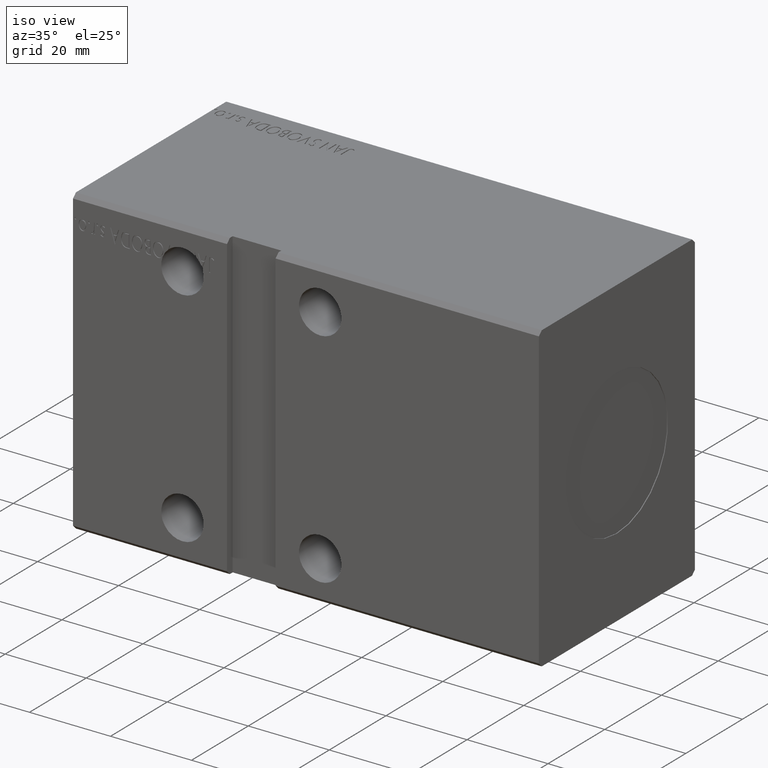
[diagram: clean part render]
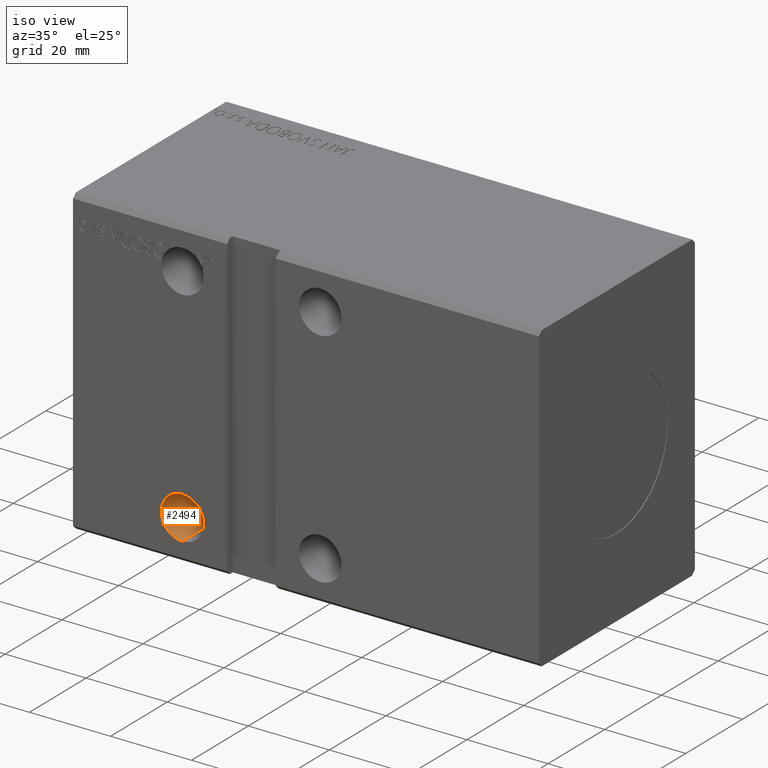
[diagram: same view with one face highlighted and labeled with its STEP entity id]
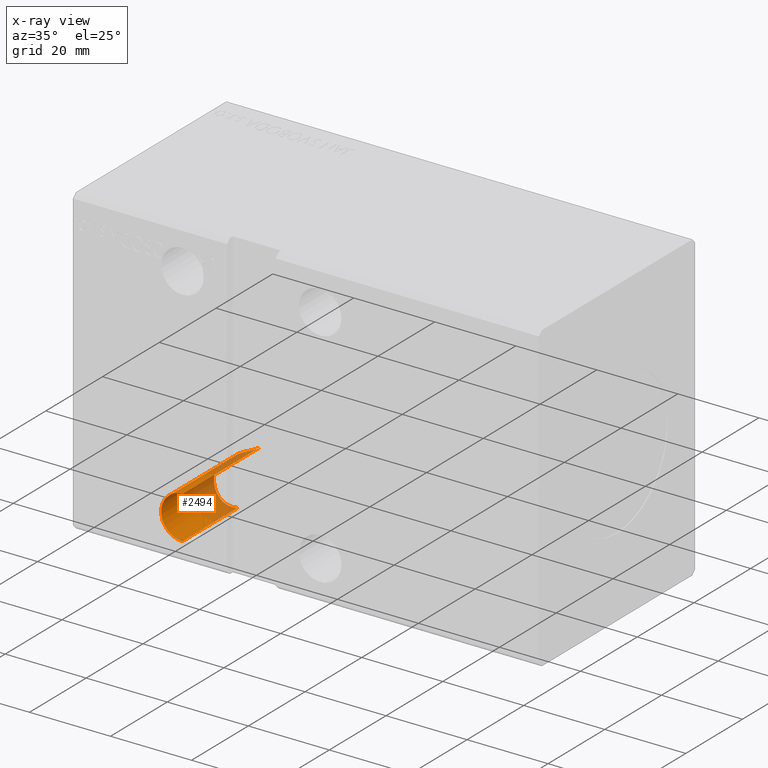
[diagram: x-ray of the same camera — body ghosted, the highlighted face saturated]
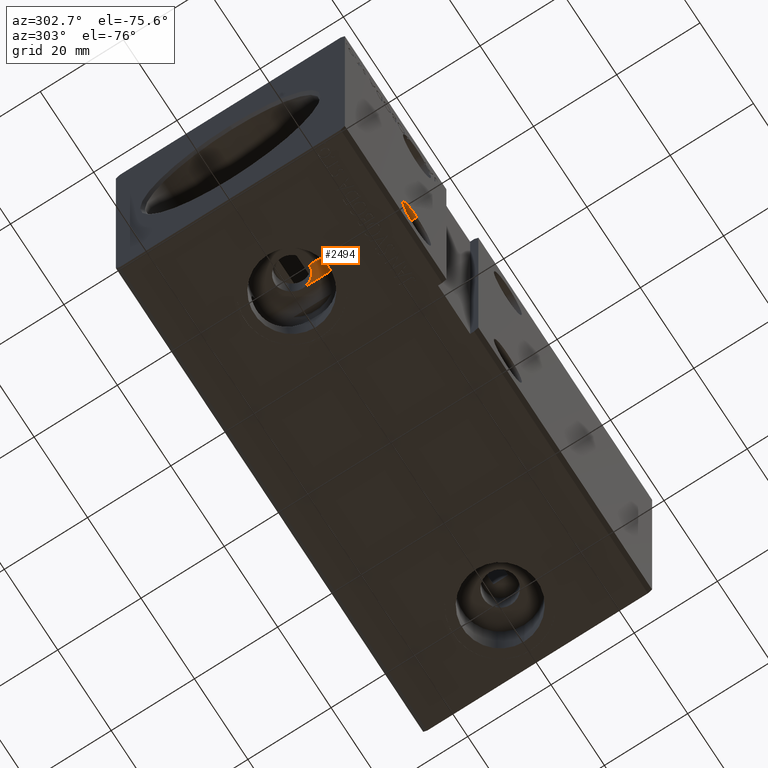
[diagram: same view with one face highlighted and labeled with its STEP entity id]
A machine part, iso view. The second image highlights one B-rep face of the part: STEP entity #2494.
The next image is the same camera in x-ray: the body ghosted, the highlighted face saturated — about 40% of this face is hidden behind the body in this view.
A second angle (auxiliary view) of the same face is appended — the face is thin or edge-on in the first view.
In plain terms, the highlighted cylindrical surface (edge-blend (fillet) strip) has radius 5.25 mm, axis along (-0, -1, -0).
Its self-contained STEP definition (entity closure, byte-faithful):
#781 = VERTEX_POINT ( 'NONE', #21496 ) ;
#1237 = CARTESIAN_POINT ( 'NONE',  ( 23.74874548984193723, -8.970939710471037998, -31.63025947165326457 ) ) ;
#1423 = CARTESIAN_POINT ( 'NONE',  ( 23.35767470268336510, -8.995023507724990708, -31.28987672906810502 ) ) ;
#1445 = EDGE_CURVE ( 'NONE', #16377, #28499, #24603, .T. ) ;
#1681 = VECTOR ( 'NONE', #32310, 1000.000000000000000 ) ;
#2026 = CARTESIAN_POINT ( 'NONE',  ( 25.80550959968107705, -8.555239810550213875, -32.61842383839086779 ) ) ;
#2209 = CARTESIAN_POINT ( 'NONE',  ( 21.88880316543686533, -8.931270881071915468, -26.27284882410880584 ) ) ;
#2494 = ADVANCED_FACE ( 'NONE', ( #11367 ), #35472, .F. ) ;
#2589 = LINE ( 'NONE', #38880, #1681 ) ;
#2803 = ORIENTED_EDGE ( 'NONE', *, *, #30347, .T. ) ;
#3028 = CARTESIAN_POINT ( 'NONE',  ( 26.58087709370445850, -1.802232880305481455, -22.26572885212446806 ) ) ;
#3425 = CARTESIAN_POINT ( 'NONE',  ( 23.27541948670728544, -3.990506748063698428, -23.79999999999998650 ) ) ;
#3627 = CARTESIAN_POINT ( 'NONE',  ( 24.97165712530440018, -3.489525752320416174, -22.65236875756328772 ) ) ;
#3718 = CARTESIAN_POINT ( 'NONE',  ( 27.00000000000000355, 27.50000000000003197, -32.75000000000000000 ) ) ;
#3967 = CARTESIAN_POINT ( 'NONE',  ( 23.27541948670728544, -3.990506748063698428, -23.79999999999998650 ) ) ;
#4209 = CARTESIAN_POINT ( 'NONE',  ( 21.74394696409208194, -8.911926248307375786, -27.55961525603168027 ) ) ;
#4298 = DIRECTION ( 'NONE',  ( -0.000000000000000000, -1.000000000000000000, -5.507058653894626469E-17 ) ) ;
#4963 = DIRECTION ( 'NONE',  ( 0.000000000000000000, 0.000000000000000000, -1.000000000000000000 ) ) ;
#6579 = EDGE_CURVE ( 'NONE', #29453, #24207, #24675, .T. ) ;
#6913 = CARTESIAN_POINT ( 'NONE',  ( 23.27541948670728544, 27.50000000000003197, -23.79999999999998650 ) ) ;
#6935 = CARTESIAN_POINT ( 'NONE',  ( 27.00000000000000355, -27.50000000000000355, -22.25000000000001066 ) ) ;
#7213 = CARTESIAN_POINT ( 'NONE',  ( 21.97308215978567603, -8.943657081571185330, -29.10219198176171673 ) ) ;
#8135 = ORIENTED_EDGE ( 'NONE', *, *, #19389, .F. ) ;
#8404 = CARTESIAN_POINT ( 'NONE',  ( 22.23082137755478982, -8.967885657624288243, -25.28985837464655972 ) ) ;
#8590 = CARTESIAN_POINT ( 'NONE',  ( 22.61114177981006179, -8.992926944251884436, -24.60709789233364120 ) ) ;
#9489 = CIRCLE ( 'NONE', #22882, 5.249999999999997335 ) ;
#10416 = CARTESIAN_POINT ( 'NONE',  ( 22.38878130200075844, -8.981646505318773066, -30.06390020045802913 ) ) ;
#10605 = CARTESIAN_POINT ( 'NONE',  ( 24.39408681521057431, -8.894117382323472043, -32.06500116610869355 ) ) ;
#11202 = CARTESIAN_POINT ( 'NONE',  ( 22.66395700614654984, -9.000118316002684082, -30.50581094479297661 ) ) ;
#11367 = FACE_OUTER_BOUND ( 'NONE', #26152, .T. ) ;
#11798 = CARTESIAN_POINT ( 'NONE',  ( 22.12780312306788844, -8.958049892849127005, -25.52727704576142997 ) ) ;
#12189 = CARTESIAN_POINT ( 'NONE',  ( 21.76362356574520263, -8.914677335557517068, -27.04173224659647801 ) ) ;
#12233 = CARTESIAN_POINT ( 'NONE',  ( 26.78794795121687855, -1.312316438189888412, -22.25325887920218548 ) ) ;
#12681 = CARTESIAN_POINT ( 'NONE',  ( 27.00000000000000711, -8.062257748298547355, -32.75000000000000000 ) ) ;
#12840 = CARTESIAN_POINT ( 'NONE',  ( 24.08767559763522925, -3.855322449080073266, -23.12399272857787480 ) ) ;
#13305 = ORIENTED_EDGE ( 'NONE', *, *, #6579, .F. ) ;
#13612 = CARTESIAN_POINT ( 'NONE',  ( 21.84032567695500759, -8.925165590556764172, -28.60184830406890555 ) ) ;
#14103 = CARTESIAN_POINT ( 'NONE',  ( 27.00000000000000711, -2.694655668400267668E-15, -22.25000000000001066 ) ) ;
#14210 = CARTESIAN_POINT ( 'NONE',  ( 27.00000000000000711, -8.062257748298547355, -32.75000000000000000 ) ) ;
#15224 = CARTESIAN_POINT ( 'NONE',  ( 24.30543104851973624, -3.788652718593733315, -22.98718635235770691 ) ) ;
#15804 = ORIENTED_EDGE ( 'NONE', *, *, #22058, .T. ) ;
#15823 = CARTESIAN_POINT ( 'NONE',  ( 23.66667275823045102, -3.949948964924149486, -23.43551939807488793 ) ) ;
#16377 = VERTEX_POINT ( 'NONE', #3967 ) ;
#16562 = CARTESIAN_POINT ( 'NONE',  ( 26.99999999999999645, -0.2672362124812732165, -22.25000000000001066 ) ) ;
#17214 = CARTESIAN_POINT ( 'NONE',  ( 26.53090808061664774, -8.282458400232838969, -32.73460297341043912 ) ) ;
#18211 = CARTESIAN_POINT ( 'NONE',  ( 23.46243547194310608, -3.977599152634948343, -23.61174159613957002 ) ) ;
#19389 = EDGE_CURVE ( 'NONE', #16377, #781, #22088, .T. ) ;
#19450 = CARTESIAN_POINT ( 'NONE',  ( 27.00000000000000355, -27.50000000000000355, -27.50000000000000711 ) ) ;
#20774 = CARTESIAN_POINT ( 'NONE',  ( 22.47192751610906569, -8.985307361087173206, -24.83047751132562198 ) ) ;
#20974 = CARTESIAN_POINT ( 'NONE',  ( 22.92052522925184022, -9.000979363429035374, -24.18505736455388799 ) ) ;
#21496 = CARTESIAN_POINT ( 'NONE',  ( 23.27541948670728544, -8.995784796577890319, -23.79999999999998650 ) ) ;
#21996 = CARTESIAN_POINT ( 'NONE',  ( 25.60354574374016323, -3.048055681134146155, -22.43543354733324691 ) ) ;
#22058 = EDGE_CURVE ( 'NONE', #28499, #36364, #2589, .T. ) ;
#22088 = LINE ( 'NONE', #6913, #30952 ) ;
#22882 = AXIS2_PLACEMENT_3D ( 'NONE', #19450, #28423, #31008 ) ;
#23131 = DIRECTION ( 'NONE',  ( -0.000000000000000000, -1.000000000000000000, -5.507058653894626469E-17 ) ) ;
#23572 = CARTESIAN_POINT ( 'NONE',  ( 23.09032825795614130, -9.001451643036478600, -23.98632086048321455 ) ) ;
#24207 = VERTEX_POINT ( 'NONE', #38859 ) ;
#24582 = CARTESIAN_POINT ( 'NONE',  ( 26.97348491638868140, -0.5313397500620519187, -22.24980193531282424 ) ) ;
#24603 = B_SPLINE_CURVE_WITH_KNOTS ( 'NONE', 3,
 ( #3425, #18211, #15823, #12840, #15224, #27578, #3627, #36338, #21996, #24997, #30360, #36942, #3028, #12233, #33945, #24582, #16562, #34143 ),
 .UNSPECIFIED., .F., .F.,
 ( 4, 2, 2, 2, 2, 2, 2, 2, 4 ),
 ( 0.009118840472137550862, 0.009912878108013296191, 0.01070691574388903979, 0.01150095337976478338, 0.01229499101564052871, 0.01308902865151627230, 0.01388306628739201590, 0.01467710392326776123, 0.01547114155914350656 ),
 .UNSPECIFIED. ) ;
#24675 = LINE ( 'NONE', #3718, #29901 ) ;
#24997 = CARTESIAN_POINT ( 'NONE',  ( 25.98003538671469670, -2.681134642081566266, -22.34640028417518920 ) ) ;
#25776 = CARTESIAN_POINT ( 'NONE',  ( 23.17275245490687752, -8.999940013037029729, -31.10320597505532092 ) ) ;
#26152 = EDGE_LOOP ( 'NONE', ( #33565, #15804, #2803, #13305, #26680, #8135 ) ) ;
#26277 = EDGE_CURVE ( 'NONE', #29453, #781, #37503, .T. ) ;
#26365 = CARTESIAN_POINT ( 'NONE',  ( 25.32428380797083989, -8.698316912479713281, -32.48167091944392126 ) ) ;
#26680 = ORIENTED_EDGE ( 'NONE', *, *, #26277, .T. ) ;
#27578 = CARTESIAN_POINT ( 'NONE',  ( 24.75071503751043167, -3.604585482684778519, -22.74953623209835385 ) ) ;
#28423 = DIRECTION ( 'NONE',  ( 0.000000000000000000, -1.000000000000000000, -4.752667057470705491E-17 ) ) ;
#28499 = VERTEX_POINT ( 'NONE', #14103 ) ;
#28569 = CARTESIAN_POINT ( 'NONE',  ( 26.76730665820864985, -8.177705975857611165, -32.74999999999999289 ) ) ;
#28763 = CARTESIAN_POINT ( 'NONE',  ( 23.95604505239460735, -8.951803165657985062, -31.78536549785217247 ) ) ;
#29318 = CARTESIAN_POINT ( 'NONE',  ( 27.00000000000000355, 27.50000000000003197, -27.50000000000000355 ) ) ;
#29364 = CARTESIAN_POINT ( 'NONE',  ( 26.05113081920369922, -8.470952115875567401, -32.66921297644072553 ) ) ;
#29453 = VERTEX_POINT ( 'NONE', #12681 ) ;
#29901 = VECTOR ( 'NONE', #31249, 1000.000000000000000 ) ;
#30297 = AXIS2_PLACEMENT_3D ( 'NONE', #29318, #23131, #4963 ) ;
#30347 = EDGE_CURVE ( 'NONE', #36364, #24207, #9489, .T. ) ;
#30360 = CARTESIAN_POINT ( 'NONE',  ( 26.15059388231446746, -2.479020236034285674, -22.31692247523550776 ) ) ;
#30952 = VECTOR ( 'NONE', #4298, 1000.000000000000000 ) ;
#31008 = DIRECTION ( 'NONE',  ( 0.000000000000000000, 0.000000000000000000, 1.000000000000000000 ) ) ;
#31249 = DIRECTION ( 'NONE',  ( -0.000000000000000000, -1.000000000000000000, -5.507058653894626469E-17 ) ) ;
#31543 = CARTESIAN_POINT ( 'NONE',  ( 21.75334309185382509, -8.913287995569794120, -27.82178174197619924 ) ) ;
#32310 = DIRECTION ( 'NONE',  ( -0.000000000000000000, -1.000000000000000000, -5.507058653894626469E-17 ) ) ;
#32909 = CARTESIAN_POINT ( 'NONE',  ( 23.27541948670728544, -8.995784796577890319, -23.79999999999998650 ) ) ;
#33565 = ORIENTED_EDGE ( 'NONE', *, *, #1445, .T. ) ;
#33945 = CARTESIAN_POINT ( 'NONE',  ( 26.86799304316954107, -1.053344259374134229, -22.25139476322972953 ) ) ;
#34143 = CARTESIAN_POINT ( 'NONE',  ( 27.00000000000000711, -2.694655668400267668E-15, -22.25000000000001066 ) ) ;
#35472 = CYLINDRICAL_SURFACE ( 'NONE', #30297, 5.249999999999997335 ) ;
#35516 = CARTESIAN_POINT ( 'NONE',  ( 21.95690363960731162, -8.939761476562997800, -26.01773235832362374 ) ) ;
#35718 = CARTESIAN_POINT ( 'NONE',  ( 21.79249472639754615, -8.918760506395972953, -26.78437306119603178 ) ) ;
#36338 = CARTESIAN_POINT ( 'NONE',  ( 25.39628296599548207, -3.212794693526320522, -22.49582222989424451 ) ) ;
#36364 = VERTEX_POINT ( 'NONE', #6935 ) ;
#36942 = CARTESIAN_POINT ( 'NONE',  ( 26.45306115131340619, -2.036701212066958089, -22.27633832677902959 ) ) ;
#37503 = B_SPLINE_CURVE_WITH_KNOTS ( 'NONE', 3,
 ( #14210, #28569, #17214, #29364, #2026, #26365, #37722, #38504, #10605, #28763, #1237, #1423, #25776, #11202, #10416, #7213, #13612, #31543, #4209, #12189, #35718, #2209, #35516, #11798, #8404, #20774, #8590, #20974, #23572, #32909 ),
 .UNSPECIFIED., .F., .F.,
 ( 4, 2, 2, 2, 2, 2, 2, 2, 2, 2, 2, 2, 2, 2, 4 ),
 ( 0.03390865343673590132, 0.03468730507548344055, 0.03546595671423097978, 0.03624460835297851902, 0.03702325999172605825, 0.03780191163047359748, 0.03858056326922114365, 0.04013786654671622212, 0.04169516982421130058, 0.04247382146295884675, 0.04325247310170639292, 0.04403112474045393215, 0.04480977637920147832, 0.04558842801794902450, 0.04636707965669657067 ),
 .UNSPECIFIED. ) ;
#37722 = CARTESIAN_POINT ( 'NONE',  ( 25.08761085830052195, -8.757746910300319598, -32.39590774564991449 ) ) ;
#38504 = CARTESIAN_POINT ( 'NONE',  ( 24.62345976748241227, -8.855542243360087440, -32.18819809803618170 ) ) ;
#38859 = CARTESIAN_POINT ( 'NONE',  ( 27.00000000000000355, -27.50000000000000355, -32.75000000000000000 ) ) ;
#38880 = CARTESIAN_POINT ( 'NONE',  ( 27.00000000000000355, 27.50000000000003197, -22.25000000000000711 ) ) ;